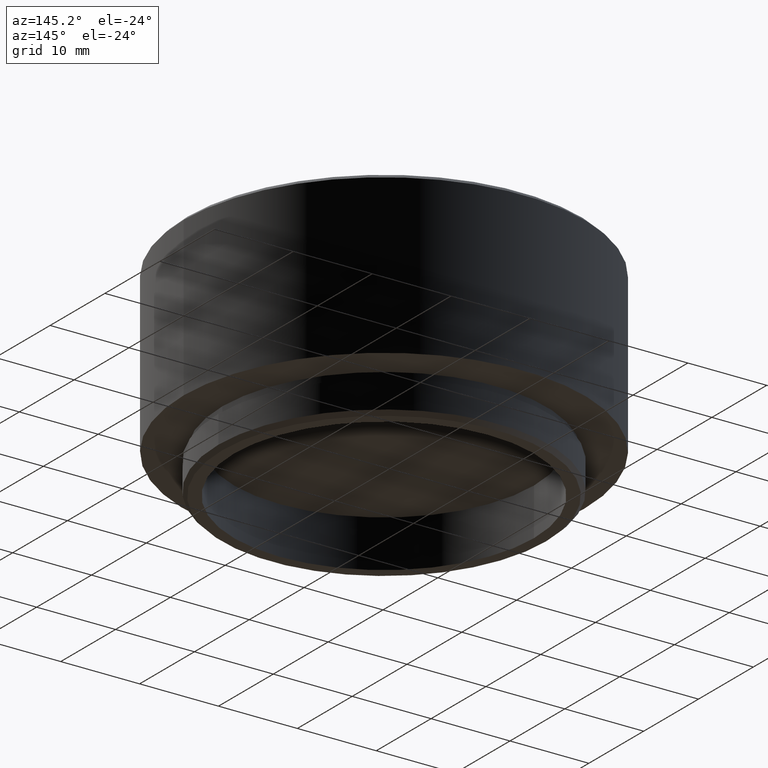
[diagram: clean part render]
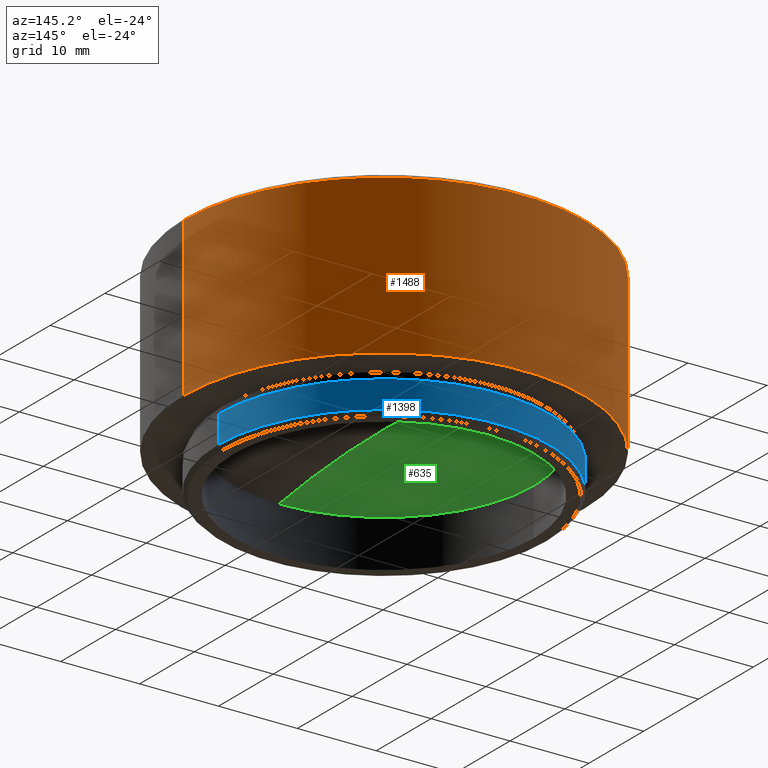
[diagram: same view with three faces highlighted in distinct colors, each labeled with its STEP entity id]
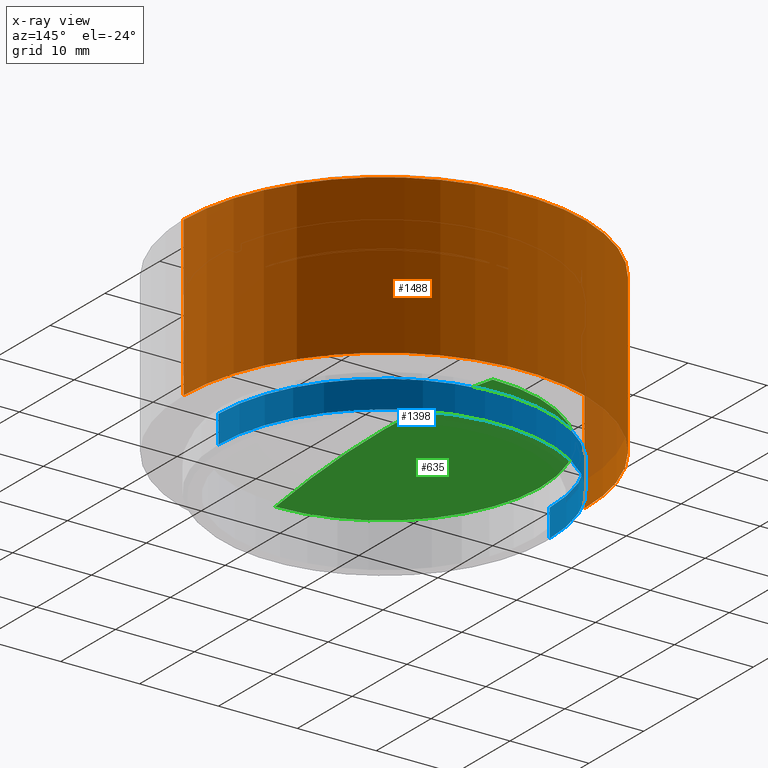
[diagram: x-ray of the same camera — body ghosted, the three highlighted faces saturated]
A machine part, auxiliary view with three faces highlighted in distinct colors.
The next image is the same camera in x-ray (body ghosted, the three faces saturated) — at least one of them is partly hidden behind the body in this view.
Their STEP definitions:

[orange] entity #1488 — the highlighted cylindrical surface (partial cylindrical patch) has radius 25.4 mm, axis along (-0, -0, -1).
#98 = DIRECTION ( 'NONE',  ( -0.000000000000000000, -0.000000000000000000, -1.000000000000000000 ) ) ;
#101 = CARTESIAN_POINT ( 'NONE',  ( 25.39999999999999858, 3.110602869834276865E-15, 5.000000000000000000 ) ) ;
#134 = DIRECTION ( 'NONE',  ( 0.000000000000000000, 0.000000000000000000, -1.000000000000000000 ) ) ;
#146 = CARTESIAN_POINT ( 'NONE',  ( -25.39999999999999858, 0.000000000000000000, 25.50000000000000000 ) ) ;
#259 = DIRECTION ( 'NONE',  ( -1.000000000000000000, 0.000000000000000000, 0.000000000000000000 ) ) ;
#315 = VECTOR ( 'NONE', #1179, 1000.000000000000000 ) ;
#378 = AXIS2_PLACEMENT_3D ( 'NONE', #1312, #134, #1681 ) ;
#383 = VECTOR ( 'NONE', #98, 1000.000000000000000 ) ;
#386 = DIRECTION ( 'NONE',  ( 0.000000000000000000, 0.000000000000000000, -1.000000000000000000 ) ) ;
#396 = FACE_OUTER_BOUND ( 'NONE', #613, .T. ) ;
#450 = EDGE_CURVE ( 'NONE', #1160, #1671, #1594, .T. ) ;
#458 = CIRCLE ( 'NONE', #1662, 25.39999999999999858 ) ;
#495 = ORIENTED_EDGE ( 'NONE', *, *, #664, .T. ) ;
#503 = DIRECTION ( 'NONE',  ( 1.000000000000000000, 0.000000000000000000, 0.000000000000000000 ) ) ;
#613 = EDGE_LOOP ( 'NONE', ( #495, #650, #1237, #1326 ) ) ;
#650 = ORIENTED_EDGE ( 'NONE', *, *, #1107, .T. ) ;
#664 = EDGE_CURVE ( 'NONE', #1160, #1659, #458, .T. ) ;
#714 = CARTESIAN_POINT ( 'NONE',  ( -25.39999999999999858, 0.000000000000000000, 5.000000000000000000 ) ) ;
#755 = VERTEX_POINT ( 'NONE', #101 ) ;
#778 = CARTESIAN_POINT ( 'NONE',  ( 0.000000000000000000, 0.000000000000000000, 25.00000000000000000 ) ) ;
#825 = CARTESIAN_POINT ( 'NONE',  ( 25.39999999999999858, 3.110602869834276865E-15, 25.00000000000000000 ) ) ;
#877 = CARTESIAN_POINT ( 'NONE',  ( 25.39999999999999858, 3.110602869834276865E-15, 25.50000000000000000 ) ) ;
#918 = CARTESIAN_POINT ( 'NONE',  ( 0.000000000000000000, 0.000000000000000000, 25.50000000000000000 ) ) ;
#1107 = EDGE_CURVE ( 'NONE', #1659, #755, #1660, .T. ) ;
#1122 = CIRCLE ( 'NONE', #378, 25.39999999999999858 ) ;
#1160 = VERTEX_POINT ( 'NONE', #1246 ) ;
#1179 = DIRECTION ( 'NONE',  ( -0.000000000000000000, -0.000000000000000000, -1.000000000000000000 ) ) ;
#1237 = ORIENTED_EDGE ( 'NONE', *, *, #1418, .F. ) ;
#1246 = CARTESIAN_POINT ( 'NONE',  ( -25.39999999999999858, 0.000000000000000000, 25.00000000000000000 ) ) ;
#1294 = CYLINDRICAL_SURFACE ( 'NONE', #1395, 25.39999999999999858 ) ;
#1312 = CARTESIAN_POINT ( 'NONE',  ( 0.000000000000000000, 0.000000000000000000, 5.000000000000000000 ) ) ;
#1326 = ORIENTED_EDGE ( 'NONE', *, *, #450, .F. ) ;
#1395 = AXIS2_PLACEMENT_3D ( 'NONE', #918, #1588, #259 ) ;
#1418 = EDGE_CURVE ( 'NONE', #1671, #755, #1122, .T. ) ;
#1488 = ADVANCED_FACE ( 'NONE', ( #396 ), #1294, .T. ) ;
#1588 = DIRECTION ( 'NONE',  ( -0.000000000000000000, -0.000000000000000000, -1.000000000000000000 ) ) ;
#1594 = LINE ( 'NONE', #146, #315 ) ;
#1659 = VERTEX_POINT ( 'NONE', #825 ) ;
#1660 = LINE ( 'NONE', #877, #383 ) ;
#1662 = AXIS2_PLACEMENT_3D ( 'NONE', #778, #386, #503 ) ;
#1671 = VERTEX_POINT ( 'NONE', #714 ) ;
#1681 = DIRECTION ( 'NONE',  ( -1.000000000000000000, 0.000000000000000000, 0.000000000000000000 ) ) ;

[blue] entity #1398 — the highlighted cylindrical surface (partial cylindrical patch) has radius 21 mm, axis along (-0, -0, -1).
#36 = VERTEX_POINT ( 'NONE', #257 ) ;
#39 = LINE ( 'NONE', #173, #480 ) ;
#81 = DIRECTION ( 'NONE',  ( 0.000000000000000000, 0.000000000000000000, 1.000000000000000000 ) ) ;
#102 = CARTESIAN_POINT ( 'NONE',  ( 0.000000000000000000, 0.000000000000000000, 0.4999999999999970024 ) ) ;
#103 = VECTOR ( 'NONE', #1647, 1000.000000000000000 ) ;
#108 = CARTESIAN_POINT ( 'NONE',  ( 0.000000000000000000, 0.000000000000000000, 4.000000000000000000 ) ) ;
#118 = CARTESIAN_POINT ( 'NONE',  ( 0.000000000000000000, 0.000000000000000000, 5.000000000000000000 ) ) ;
#173 = CARTESIAN_POINT ( 'NONE',  ( 21.00000000000000000, 2.571758278209441661E-15, 5.000000000000000000 ) ) ;
#196 = CARTESIAN_POINT ( 'NONE',  ( 21.00000000000000000, 2.571758278209441661E-15, 4.000000000000000000 ) ) ;
#203 = EDGE_CURVE ( 'NONE', #949, #914, #39, .T. ) ;
#251 = FACE_OUTER_BOUND ( 'NONE', #993, .T. ) ;
#257 = CARTESIAN_POINT ( 'NONE',  ( -21.00000000000000000, 0.000000000000000000, 4.000000000000000000 ) ) ;
#369 = VERTEX_POINT ( 'NONE', #1315 ) ;
#434 = DIRECTION ( 'NONE',  ( -0.000000000000000000, -0.000000000000000000, -1.000000000000000000 ) ) ;
#480 = VECTOR ( 'NONE', #434, 1000.000000000000000 ) ;
#504 = DIRECTION ( 'NONE',  ( -1.000000000000000000, 0.000000000000000000, 0.000000000000000000 ) ) ;
#552 = ORIENTED_EDGE ( 'NONE', *, *, #1266, .T. ) ;
#601 = AXIS2_PLACEMENT_3D ( 'NONE', #118, #1042, #504 ) ;
#602 = LINE ( 'NONE', #1127, #103 ) ;
#615 = DIRECTION ( 'NONE',  ( 0.000000000000000000, 0.000000000000000000, -1.000000000000000000 ) ) ;
#620 = CIRCLE ( 'NONE', #1032, 21.00000000000000000 ) ;
#673 = EDGE_CURVE ( 'NONE', #36, #949, #620, .T. ) ;
#784 = CIRCLE ( 'NONE', #1145, 21.00000000000000000 ) ;
#891 = ORIENTED_EDGE ( 'NONE', *, *, #203, .T. ) ;
#914 = VERTEX_POINT ( 'NONE', #1111 ) ;
#949 = VERTEX_POINT ( 'NONE', #196 ) ;
#993 = EDGE_LOOP ( 'NONE', ( #1243, #891, #552, #1309 ) ) ;
#1014 = DIRECTION ( 'NONE',  ( 1.000000000000000000, 0.000000000000000000, 0.000000000000000000 ) ) ;
#1032 = AXIS2_PLACEMENT_3D ( 'NONE', #108, #615, #1408 ) ;
#1042 = DIRECTION ( 'NONE',  ( -0.000000000000000000, -0.000000000000000000, -1.000000000000000000 ) ) ;
#1111 = CARTESIAN_POINT ( 'NONE',  ( 21.00000000000000000, 2.571758278209441661E-15, 0.4999999999999970024 ) ) ;
#1127 = CARTESIAN_POINT ( 'NONE',  ( -21.00000000000000000, 0.000000000000000000, 5.000000000000000000 ) ) ;
#1145 = AXIS2_PLACEMENT_3D ( 'NONE', #102, #81, #1014 ) ;
#1243 = ORIENTED_EDGE ( 'NONE', *, *, #673, .T. ) ;
#1266 = EDGE_CURVE ( 'NONE', #914, #369, #784, .T. ) ;
#1309 = ORIENTED_EDGE ( 'NONE', *, *, #1377, .F. ) ;
#1315 = CARTESIAN_POINT ( 'NONE',  ( -21.00000000000000000, 0.000000000000000000, 0.4999999999999970024 ) ) ;
#1377 = EDGE_CURVE ( 'NONE', #36, #369, #602, .T. ) ;
#1398 = ADVANCED_FACE ( 'NONE', ( #251 ), #1438, .T. ) ;
#1408 = DIRECTION ( 'NONE',  ( -1.000000000000000000, 0.000000000000000000, 0.000000000000000000 ) ) ;
#1438 = CYLINDRICAL_SURFACE ( 'NONE', #601, 21.00000000000000000 ) ;
#1647 = DIRECTION ( 'NONE',  ( -0.000000000000000000, -0.000000000000000000, -1.000000000000000000 ) ) ;

[green] entity #635 — the highlighted toroidal blend (fillet) surface has major radius 0.0725 mm and minor (blend) radius 125.45 mm.
#1 = ORIENTED_EDGE ( 'NONE', *, *, #971, .T. ) ;
#5 = VERTEX_POINT ( 'NONE', #642 ) ;
#37 = CARTESIAN_POINT ( 'NONE',  ( 0.000000000000000000, 0.07253151606972929599, -133.4499790321989963 ) ) ;
#57 = ORIENTED_EDGE ( 'NONE', *, *, #1215, .F. ) ;
#63 = VERTEX_POINT ( 'NONE', #709 ) ;
#133 = DIRECTION ( 'NONE',  ( 0.000000000000000000, 1.749805707287259954E-16, -1.000000000000000000 ) ) ;
#330 = ORIENTED_EDGE ( 'NONE', *, *, #772, .T. ) ;
#363 = CARTESIAN_POINT ( 'NONE',  ( 0.000000000000000000, 2.358139725155969620E-14, -8.000000000000000000 ) ) ;
#418 = CIRCLE ( 'NONE', #1352, 125.4500000000000028 ) ;
#454 = CIRCLE ( 'NONE', #838, 19.82761250294655042 ) ;
#635 = ADVANCED_FACE ( 'NONE', ( #896 ), #925, .F. ) ;
#642 = CARTESIAN_POINT ( 'NONE',  ( 2.428182218646759545E-15, -19.82761250294660371, -9.565196773836358801 ) ) ;
#700 = VERTEX_POINT ( 'NONE', #363 ) ;
#709 = CARTESIAN_POINT ( 'NONE',  ( 0.000000000000000000, 19.82761250294660371, -9.565196773836358801 ) ) ;
#732 = DIRECTION ( 'NONE',  ( 1.000000000000000000, 1.224646799147353947E-16, 1.639737362376964975E-32 ) ) ;
#734 = AXIS2_PLACEMENT_3D ( 'NONE', #37, #1093, #959 ) ;
#739 = EDGE_LOOP ( 'NONE', ( #57, #1, #330 ) ) ;
#772 = EDGE_CURVE ( 'NONE', #5, #63, #454, .T. ) ;
#838 = AXIS2_PLACEMENT_3D ( 'NONE', #1604, #133, #1194 ) ;
#896 = FACE_OUTER_BOUND ( 'NONE', #739, .T. ) ;
#925 = TOROIDAL_SURFACE ( 'NONE', #1207, 0.07253151606971229570, 125.4500000000000028 ) ;
#959 = DIRECTION ( 'NONE',  ( 0.000000000000000000, 0.000000000000000000, 1.000000000000000000 ) ) ;
#971 = EDGE_CURVE ( 'NONE', #700, #5, #418, .T. ) ;
#1041 = DIRECTION ( 'NONE',  ( 0.000000000000000000, 1.338947167067771929E-16, -1.000000000000000000 ) ) ;
#1043 = CIRCLE ( 'NONE', #734, 125.4500000000000028 ) ;
#1093 = DIRECTION ( 'NONE',  ( -1.000000000000000000, 0.000000000000000000, 0.000000000000000000 ) ) ;
#1194 = DIRECTION ( 'NONE',  ( 0.000000000000000000, 1.000000000000000000, 1.749805707287261680E-16 ) ) ;
#1207 = AXIS2_PLACEMENT_3D ( 'NONE', #1426, #1041, #1283 ) ;
#1215 = EDGE_CURVE ( 'NONE', #700, #63, #1043, .T. ) ;
#1283 = DIRECTION ( 'NONE',  ( 0.000000000000000000, 1.000000000000000000, 1.338947167067771929E-16 ) ) ;
#1352 = AXIS2_PLACEMENT_3D ( 'NONE', #1628, #732, #1387 ) ;
#1387 = DIRECTION ( 'NONE',  ( -1.224646799147353947E-16, 1.000000000000000000, 0.000000000000000000 ) ) ;
#1426 = CARTESIAN_POINT ( 'NONE',  ( 0.000000000000000000, 1.703552663517849789E-14, -133.4499790321989963 ) ) ;
#1604 = CARTESIAN_POINT ( 'NONE',  ( 0.000000000000000000, 4.480088104141154647E-16, -9.565196773836348143 ) ) ;
#1628 = CARTESIAN_POINT ( 'NONE',  ( 8.882548899207790141E-18, -0.07253151606969519827, -133.4499790321989963 ) ) ;